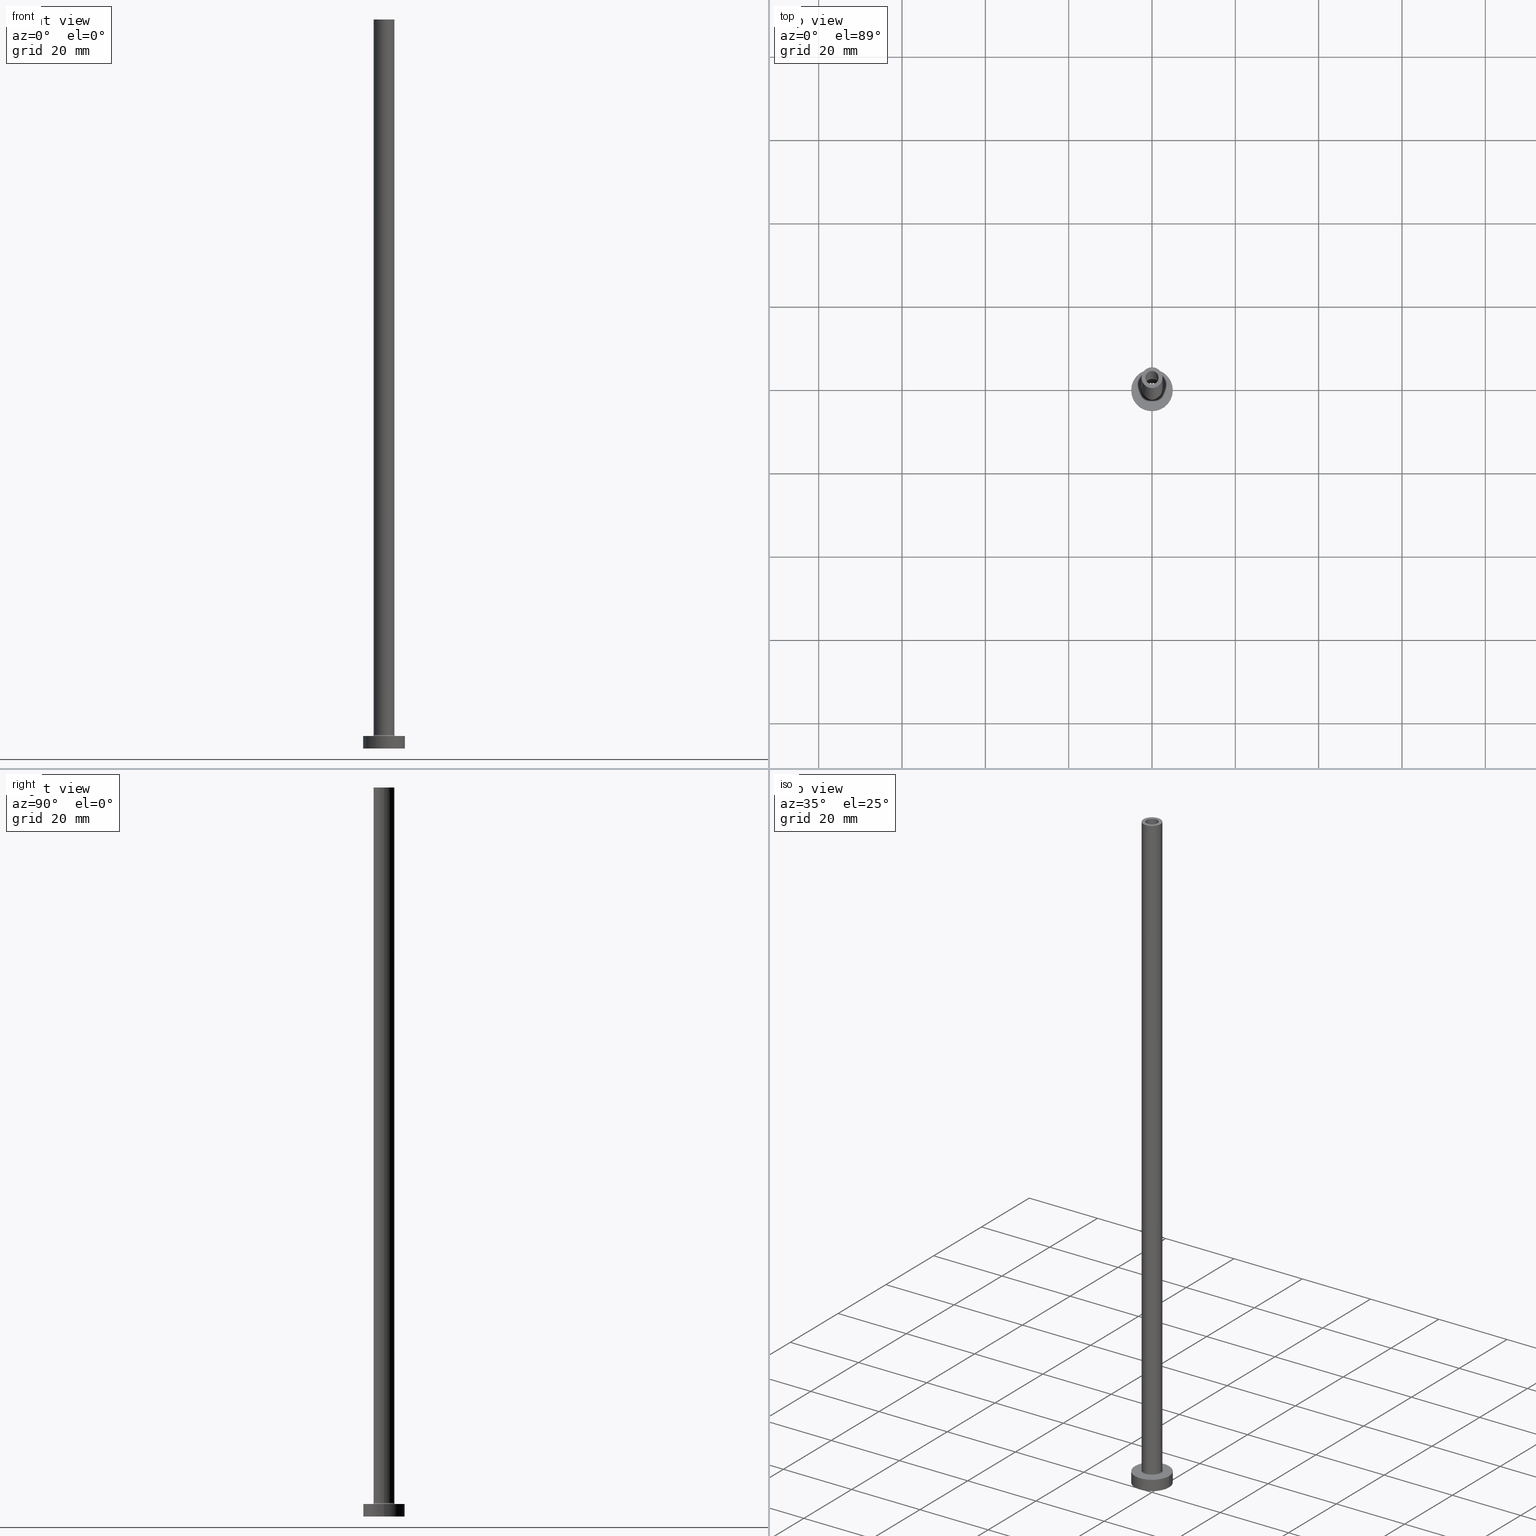
[diagram: canonical four-view strip — front | top / right | iso, engineering-drawing reading convention]
A machine part, canonical four-view strip (front | top / right | iso — engineering-drawing reading convention). The complete STEP part file that produces these views, byte-faithful:
ISO-10303-21;
HEADER;
FILE_DESCRIPTION (( 'STEP AP203' ),
    '1' );
FILE_NAME ('775a.STEP',
    '2023-02-13T12:02:19',
    ( '' ),
    ( '' ),
    'SwSTEP 2.0',
    'SolidWorks 2019',
    '' );
FILE_SCHEMA (( 'CONFIG_CONTROL_DESIGN' ));
ENDSEC;

DATA;
#1 = CARTESIAN_POINT ( 'NONE',  ( 0.000000000000000000, 0.000000000000000000, 0.000000000000000000 ) ) ;
#2 = ADVANCED_FACE ( 'NONE', ( #131 ), #355, .F. ) ;
#3 = DIRECTION ( 'NONE',  ( -0.000000000000000000, -0.000000000000000000, -1.000000000000000000 ) ) ;
#4 = AXIS2_PLACEMENT_3D ( 'NONE', #346, #78, #156 ) ;
#5 = CIRCLE ( 'NONE', #420, 5.000000000000000000 ) ;
#6 = PERSON_AND_ORGANIZATION ( #260, #377 ) ;
#7 = DIRECTION ( 'NONE',  ( -0.000000000000000000, -0.000000000000000000, -1.000000000000000000 ) ) ;
#8 = CARTESIAN_POINT ( 'NONE',  ( -5.000000000000000000, 0.000000000000000000, 3.000000000000000000 ) ) ;
#9 = CARTESIAN_POINT ( 'NONE',  ( -5.000000000000000000, 0.000000000000000000, 3.000000000000000000 ) ) ;
#10 = ORIENTED_EDGE ( 'NONE', *, *, #178, .T. ) ;
#11 = CC_DESIGN_PERSON_AND_ORGANIZATION_ASSIGNMENT ( #124, #255, ( #209 ) ) ;
#12 = CIRCLE ( 'NONE', #159, 1.750000000000000000 ) ;
#13 = CARTESIAN_POINT ( 'NONE',  ( 2.500000000000000000, 3.061616997868383141E-16, 3.299999999999997158 ) ) ;
#14 = CIRCLE ( 'NONE', #452, 1.750000000000000000 ) ;
#15 = DIRECTION ( 'NONE',  ( -0.000000000000000000, -0.000000000000000000, -1.000000000000000000 ) ) ;
#16 = DIRECTION ( 'NONE',  ( 0.000000000000000000, 0.000000000000000000, 1.000000000000000000 ) ) ;
#17 = CARTESIAN_POINT ( 'NONE',  ( 0.000000000000000000, 0.000000000000000000, 134.9497474683058442 ) ) ;
#18 = CARTESIAN_POINT ( 'NONE',  ( 0.000000000000000000, 0.000000000000000000, 3.000000000000000000 ) ) ;
#19 = AXIS2_PLACEMENT_3D ( 'NONE', #164, #292, #186 ) ;
#20 = DIRECTION ( 'NONE',  ( -1.000000000000000000, 0.000000000000000000, 0.000000000000000000 ) ) ;
#21 = AXIS2_PLACEMENT_3D ( 'NONE', #283, #115, #218 ) ;
#22 = CIRCLE ( 'NONE', #257, 5.000000000000000000 ) ;
#23 = DIRECTION ( 'NONE',  ( 1.000000000000000000, 0.000000000000000000, 0.000000000000000000 ) ) ;
#24 = ORIENTED_EDGE ( 'NONE', *, *, #199, .F. ) ;
#25 = ORIENTED_EDGE ( 'NONE', *, *, #178, .F. ) ;
#26 = EDGE_CURVE ( 'NONE', #64, #35, #228, .T. ) ;
#27 = FACE_OUTER_BOUND ( 'NONE', #203, .T. ) ;
#28 = EDGE_LOOP ( 'NONE', ( #390, #127 ) ) ;
#29 = DATE_AND_TIME ( #102, #44 ) ;
#30 = AXIS2_PLACEMENT_3D ( 'NONE', #365, #166, #20 ) ;
#31 = AXIS2_PLACEMENT_3D ( 'NONE', #264, #108, #61 ) ;
#32 = CYLINDRICAL_SURFACE ( 'NONE', #74, 2.500000000000000000 ) ;
#33 = EDGE_LOOP ( 'NONE', ( #383, #450, #417, #305 ) ) ;
#34 = FACE_BOUND ( 'NONE', #272, .T. ) ;
#35 = VERTEX_POINT ( 'NONE', #151 ) ;
#36 = AXIS2_PLACEMENT_3D ( 'NONE', #445, #284, #77 ) ;
#37 = EDGE_CURVE ( 'NONE', #428, #58, #12, .T. ) ;
#38 = LINE ( 'NONE', #279, #376 ) ;
#39 = DIRECTION ( 'NONE',  ( 0.000000000000000000, 0.000000000000000000, -1.000000000000000000 ) ) ;
#40 = EDGE_CURVE ( 'NONE', #311, #174, #154, .T. ) ;
#41 = DIRECTION ( 'NONE',  ( -1.000000000000000000, 0.000000000000000000, 0.000000000000000000 ) ) ;
#42 = CYLINDRICAL_SURFACE ( 'NONE', #85, 2.500000000000000000 ) ;
#43 = CIRCLE ( 'NONE', #421, 2.500000000000000000 ) ;
#44 = LOCAL_TIME ( 13, 2, 19.00000000000000000, #153 ) ;
#45 = ORIENTED_EDGE ( 'NONE', *, *, #165, .F. ) ;
#46 = FACE_OUTER_BOUND ( 'NONE', #387, .T. ) ;
#47 = CARTESIAN_POINT ( 'NONE',  ( 0.000000000000000000, 0.000000000000000000, 0.000000000000000000 ) ) ;
#48 = PERSON_AND_ORGANIZATION ( #260, #377 ) ;
#49 = PERSON_AND_ORGANIZATION ( #260, #377 ) ;
#50 = AXIS2_PLACEMENT_3D ( 'NONE', #269, #426, #23 ) ;
#51 = AXIS2_PLACEMENT_3D ( 'NONE', #280, #401, #76 ) ;
#52 = ORIENTED_EDGE ( 'NONE', *, *, #270, .T. ) ;
#53 = DIRECTION ( 'NONE',  ( -1.000000000000000000, 0.000000000000000000, 0.000000000000000000 ) ) ;
#54 = FACE_OUTER_BOUND ( 'NONE', #303, .T. ) ;
#55 = ORIENTED_EDGE ( 'NONE', *, *, #363, .F. ) ;
#56 = ADVANCED_FACE ( 'NONE', ( #302, #338 ), #99, .F. ) ;
#57 = EDGE_LOOP ( 'NONE', ( #444, #374, #353, #380 ) ) ;
#58 = VERTEX_POINT ( 'NONE', #144 ) ;
#59 = CARTESIAN_POINT ( 'NONE',  ( 0.000000000000000000, 0.000000000000000000, 175.0000000000000000 ) ) ;
#60 = EDGE_LOOP ( 'NONE', ( #419, #229 ) ) ;
#61 = DIRECTION ( 'NONE',  ( 1.000000000000000000, 0.000000000000000000, -0.000000000000000000 ) ) ;
#62 = APPROVAL_DATE_TIME ( #29, #301 ) ;
#63 = APPROVAL_ROLE ( '' ) ;
#64 = VERTEX_POINT ( 'NONE', #139 ) ;
#65 = CARTESIAN_POINT ( 'NONE',  ( 0.000000000000000000, 0.000000000000000000, 175.0000000000000000 ) ) ;
#66 = CALENDAR_DATE ( 2023, 13, 2 ) ;
#67 = VECTOR ( 'NONE', #285, 1000.000000000000000 ) ;
#68 = EDGE_CURVE ( 'NONE', #136, #174, #92, .T. ) ;
#69 = ORIENTED_EDGE ( 'NONE', *, *, #414, .T. ) ;
#70 = DIRECTION ( 'NONE',  ( 0.000000000000000000, 0.000000000000000000, 1.000000000000000000 ) ) ;
#71 = UNCERTAINTY_MEASURE_WITH_UNIT (LENGTH_MEASURE( 1.000000000000000082E-05 ), #82, 'distance_accuracy_value', 'NONE');
#72 = ORIENTED_EDGE ( 'NONE', *, *, #26, .T. ) ;
#73 = AXIS2_PLACEMENT_3D ( 'NONE', #1, #236, #308 ) ;
#74 = AXIS2_PLACEMENT_3D ( 'NONE', #59, #343, #175 ) ;
#75 = APPROVAL ( #382, 'NEUR�EN�' ) ;
#76 = DIRECTION ( 'NONE',  ( -1.000000000000000000, 0.000000000000000000, 0.000000000000000000 ) ) ;
#77 = DIRECTION ( 'NONE',  ( 1.000000000000000000, 0.000000000000000000, 0.000000000000000000 ) ) ;
#78 = DIRECTION ( 'NONE',  ( -0.000000000000000000, -0.000000000000000000, -1.000000000000000000 ) ) ;
#79 = CYLINDRICAL_SURFACE ( 'NONE', #150, 1.750000000000000000 ) ;
#80 = DIRECTION ( 'NONE',  ( 1.224646799147353207E-16, 1.000000000000000000, -0.000000000000000000 ) ) ;
#81 = FACE_OUTER_BOUND ( 'NONE', #413, .T. ) ;
#82 =( LENGTH_UNIT ( ) NAMED_UNIT ( * ) SI_UNIT ( .MILLI., .METRE. ) );
#83 = CARTESIAN_POINT ( 'NONE',  ( 2.799999999999999822, 0.000000000000000000, 3.299999999999997158 ) ) ;
#84 = VECTOR ( 'NONE', #103, 1000.000000000000000 ) ;
#85 = AXIS2_PLACEMENT_3D ( 'NONE', #404, #15, #400 ) ;
#86 = CC_DESIGN_SECURITY_CLASSIFICATION ( #93, ( #209 ) ) ;
#87 = COORDINATED_UNIVERSAL_TIME_OFFSET ( 1, 0, .AHEAD. ) ;
#88 = EDGE_CURVE ( 'NONE', #145, #111, #223, .T. ) ;
#89 = DATE_TIME_ROLE ( 'creation_date' ) ;
#90 = APPLICATION_CONTEXT ( 'configuration controlled 3d designs of mechanical parts and assemblies' ) ;
#91 = DATE_AND_TIME ( #410, #244 ) ;
#92 = CIRCLE ( 'NONE', #50, 1.600000000000000089 ) ;
#93 = SECURITY_CLASSIFICATION ( '', '', #117 ) ;
#94 = ORIENTED_EDGE ( 'NONE', *, *, #170, .T. ) ;
#95 = EDGE_CURVE ( 'NONE', #427, #58, #38, .T. ) ;
#96 = EDGE_LOOP ( 'NONE', ( #453, #207, #341, #69 ) ) ;
#97 = CARTESIAN_POINT ( 'NONE',  ( -1.600000000000000089, 0.000000000000000000, 175.0000000000000000 ) ) ;
#98 = CIRCLE ( 'NONE', #297, 1.600000000000000089 ) ;
#99 = PLANE ( 'NONE',  #73 ) ;
#100 = ORIENTED_EDGE ( 'NONE', *, *, #270, .F. ) ;
#101 = DIRECTION ( 'NONE',  ( 0.000000000000000000, 0.000000000000000000, 1.000000000000000000 ) ) ;
#102 = CALENDAR_DATE ( 2023, 13, 2 ) ;
#103 = DIRECTION ( 'NONE',  ( 0.000000000000000000, 0.000000000000000000, -1.000000000000000000 ) ) ;
#104 = ORIENTED_EDGE ( 'NONE', *, *, #171, .F. ) ;
#105 = EDGE_CURVE ( 'NONE', #288, #136, #439, .T. ) ;
#106 = ORIENTED_EDGE ( 'NONE', *, *, #105, .T. ) ;
#107 = CYLINDRICAL_SURFACE ( 'NONE', #322, 1.600000000000000089 ) ;
#108 = DIRECTION ( 'NONE',  ( 0.000000000000000000, 0.000000000000000000, 1.000000000000000000 ) ) ;
#109 = PERSON_AND_ORGANIZATION ( #260, #377 ) ;
#110 = EDGE_CURVE ( 'NONE', #327, #133, #114, .T. ) ;
#111 = VERTEX_POINT ( 'NONE', #441 ) ;
#112 = ADVANCED_BREP_SHAPE_REPRESENTATION ( '775a', ( #158, #163 ), #252 ) ;
#113 = CARTESIAN_POINT ( 'NONE',  ( -1.750000000000000000, 0.000000000000000000, 130.0000000000000000 ) ) ;
#114 = LINE ( 'NONE', #188, #251 ) ;
#115 = DIRECTION ( 'NONE',  ( 0.000000000000000000, 0.000000000000000000, 1.000000000000000000 ) ) ;
#116 = CARTESIAN_POINT ( 'NONE',  ( 1.600000000000000089, 1.959434878635764737E-16, 130.0000000000000000 ) ) ;
#117 = SECURITY_CLASSIFICATION_LEVEL ( 'unclassified' ) ;
#118 = ORIENTED_EDGE ( 'NONE', *, *, #95, .F. ) ;
#119 = DIRECTION ( 'NONE',  ( 0.000000000000000000, 0.000000000000000000, -1.000000000000000000 ) ) ;
#120 = FACE_OUTER_BOUND ( 'NONE', #227, .T. ) ;
#121 = CARTESIAN_POINT ( 'NONE',  ( 1.750000000000000000, 2.143131898507868297E-16, 134.9497474683058442 ) ) ;
#122 = AXIS2_PLACEMENT_3D ( 'NONE', #18, #157, #278 ) ;
#123 = APPROVAL_DATE_TIME ( #461, #75 ) ;
#124 = PERSON_AND_ORGANIZATION ( #260, #377 ) ;
#125 = ORIENTED_EDGE ( 'NONE', *, *, #277, .F. ) ;
#126 = ADVANCED_FACE ( 'NONE', ( #407, #120 ), #436, .F. ) ;
#127 = ORIENTED_EDGE ( 'NONE', *, *, #199, .T. ) ;
#128 = CIRCLE ( 'NONE', #388, 1.750000000000000000 ) ;
#129 = VERTEX_POINT ( 'NONE', #8 ) ;
#130 = CIRCLE ( 'NONE', #290, 0.2999999999999999334 ) ;
#131 = FACE_OUTER_BOUND ( 'NONE', #33, .T. ) ;
#132 = DIRECTION ( 'NONE',  ( -1.000000000000000000, 0.000000000000000000, 0.000000000000000000 ) ) ;
#133 = VERTEX_POINT ( 'NONE', #13 ) ;
#134 = FACE_OUTER_BOUND ( 'NONE', #60, .T. ) ;
#135 = CIRCLE ( 'NONE', #389, 5.000000000000000000 ) ;
#136 = VERTEX_POINT ( 'NONE', #116 ) ;
#137 = EDGE_CURVE ( 'NONE', #458, #427, #128, .T. ) ;
#138 = CARTESIAN_POINT ( 'NONE',  ( 1.600000000000000089, 1.959434878635764737E-16, 175.0000000000000000 ) ) ;
#139 = CARTESIAN_POINT ( 'NONE',  ( -2.500000000000000000, 0.000000000000000000, 175.0000000000000000 ) ) ;
#140 = ADVANCED_FACE ( 'NONE', ( #81 ), #216, .T. ) ;
#141 = FACE_BOUND ( 'NONE', #28, .T. ) ;
#142 = COORDINATED_UNIVERSAL_TIME_OFFSET ( 1, 0, .AHEAD. ) ;
#143 = PERSON_AND_ORGANIZATION_ROLE ( 'design_owner' ) ;
#144 = CARTESIAN_POINT ( 'NONE',  ( -1.750000000000000000, 0.000000000000000000, 0.000000000000000000 ) ) ;
#145 = VERTEX_POINT ( 'NONE', #336 ) ;
#146 = ORIENTED_EDGE ( 'NONE', *, *, #443, .F. ) ;
#147 = DIRECTION ( 'NONE',  ( 0.000000000000000000, 0.000000000000000000, -1.000000000000000000 ) ) ;
#148 = ADVANCED_FACE ( 'NONE', ( #54 ), #225, .F. ) ;
#149 = PERSON_AND_ORGANIZATION_ROLE ( 'classification_officer' ) ;
#150 = AXIS2_PLACEMENT_3D ( 'NONE', #17, #195, #41 ) ;
#151 = CARTESIAN_POINT ( 'NONE',  ( -2.500000000000000000, 0.000000000000000000, 3.299999999999997158 ) ) ;
#152 = APPLICATION_CONTEXT ( 'configuration controlled 3d designs of mechanical parts and assemblies' ) ;
#153 = COORDINATED_UNIVERSAL_TIME_OFFSET ( 1, 0, .AHEAD. ) ;
#154 = LINE ( 'NONE', #386, #84 ) ;
#155 = PLANE ( 'NONE',  #122 ) ;
#156 = DIRECTION ( 'NONE',  ( 1.000000000000000000, 0.000000000000000000, 0.000000000000000000 ) ) ;
#157 = DIRECTION ( 'NONE',  ( 0.000000000000000000, 0.000000000000000000, 1.000000000000000000 ) ) ;
#158 = MANIFOLD_SOLID_BREP ( 'Odebrat vysunut�m4', #321 ) ;
#159 = AXIS2_PLACEMENT_3D ( 'NONE', #393, #245, #402 ) ;
#160 = CIRCLE ( 'NONE', #36, 1.750000000000000000 ) ;
#161 = CARTESIAN_POINT ( 'NONE',  ( 0.000000000000000000, 0.000000000000000000, 175.0000000000000000 ) ) ;
#162 = CC_DESIGN_DATE_AND_TIME_ASSIGNMENT ( #253, #89, ( #232 ) ) ;
#163 = AXIS2_PLACEMENT_3D ( 'NONE', #351, #235, #431 ) ;
#164 = CARTESIAN_POINT ( 'NONE',  ( 0.000000000000000000, 0.000000000000000000, 3.000000000000000000 ) ) ;
#165 = EDGE_CURVE ( 'NONE', #288, #311, #190, .T. ) ;
#166 = DIRECTION ( 'NONE',  ( -0.000000000000000000, -0.000000000000000000, -1.000000000000000000 ) ) ;
#167 = EDGE_LOOP ( 'NONE', ( #392, #146, #72, #94 ) ) ;
#168 = AXIS2_PLACEMENT_3D ( 'NONE', #161, #364, #394 ) ;
#169 = ORIENTED_EDGE ( 'NONE', *, *, #37, .T. ) ;
#170 = EDGE_CURVE ( 'NONE', #35, #133, #43, .T. ) ;
#171 = EDGE_CURVE ( 'NONE', #415, #266, #230, .T. ) ;
#172 = ORIENTED_EDGE ( 'NONE', *, *, #243, .T. ) ;
#173 = VECTOR ( 'NONE', #254, 1000.000000000000000 ) ;
#174 = VERTEX_POINT ( 'NONE', #250 ) ;
#175 = DIRECTION ( 'NONE',  ( -1.000000000000000000, 0.000000000000000000, 0.000000000000000000 ) ) ;
#176 = DIRECTION ( 'NONE',  ( 1.000000000000000000, 0.000000000000000000, 0.000000000000000000 ) ) ;
#177 = ORIENTED_EDGE ( 'NONE', *, *, #369, .F. ) ;
#178 = EDGE_CURVE ( 'NONE', #200, #266, #399, .T. ) ;
#179 = ADVANCED_FACE ( 'NONE', ( #329 ), #325, .F. ) ;
#180 = CC_DESIGN_PERSON_AND_ORGANIZATION_ASSIGNMENT ( #222, #332, ( #209 ) ) ;
#181 = APPROVAL_ROLE ( '' ) ;
#182 = CC_DESIGN_APPROVAL ( #75, ( #232 ) ) ;
#183 = EDGE_CURVE ( 'NONE', #129, #415, #360, .T. ) ;
#184 = CARTESIAN_POINT ( 'NONE',  ( 1.750000000000000000, 2.143131898507868297E-16, 0.000000000000000000 ) ) ;
#185 = CARTESIAN_POINT ( 'NONE',  ( 0.000000000000000000, 0.000000000000000000, 130.0000000000000000 ) ) ;
#186 = DIRECTION ( 'NONE',  ( 1.000000000000000000, 0.000000000000000000, 0.000000000000000000 ) ) ;
#187 = DIRECTION ( 'NONE',  ( -1.000000000000000000, 1.224646799147353207E-16, 0.000000000000000000 ) ) ;
#188 = CARTESIAN_POINT ( 'NONE',  ( 2.500000000000000000, 3.061616997868383141E-16, 175.0000000000000000 ) ) ;
#189 = CARTESIAN_POINT ( 'NONE',  ( 0.000000000000000000, 0.000000000000000000, 175.0000000000000000 ) ) ;
#190 = CIRCLE ( 'NONE', #197, 1.600000000000000089 ) ;
#191 = APPROVAL_PERSON_ORGANIZATION ( #49, #356, #409 ) ;
#192 = DIRECTION ( 'NONE',  ( 0.000000000000000000, 0.000000000000000000, 1.000000000000000000 ) ) ;
#193 = DIRECTION ( 'NONE',  ( 1.000000000000000000, 0.000000000000000000, 0.000000000000000000 ) ) ;
#194 = DIRECTION ( 'NONE',  ( 1.000000000000000000, 0.000000000000000000, 0.000000000000000000 ) ) ;
#195 = DIRECTION ( 'NONE',  ( 0.000000000000000000, 0.000000000000000000, -1.000000000000000000 ) ) ;
#196 = CC_DESIGN_PERSON_AND_ORGANIZATION_ASSIGNMENT ( #109, #143, ( #416 ) ) ;
#197 = AXIS2_PLACEMENT_3D ( 'NONE', #335, #258, #298 ) ;
#198 = LOCAL_TIME ( 13, 2, 19.00000000000000000, #449 ) ;
#199 = EDGE_CURVE ( 'NONE', #111, #145, #219, .T. ) ;
#200 = VERTEX_POINT ( 'NONE', #318 ) ;
#201 = EDGE_CURVE ( 'NONE', #327, #64, #408, .T. ) ;
#202 = ORIENTED_EDGE ( 'NONE', *, *, #26, .F. ) ;
#203 = EDGE_LOOP ( 'NONE', ( #256, #100, #339, #24 ) ) ;
#204 = FACE_OUTER_BOUND ( 'NONE', #57, .T. ) ;
#205 = ORIENTED_EDGE ( 'NONE', *, *, #201, .F. ) ;
#206 = SHAPE_DEFINITION_REPRESENTATION ( #457, #112 ) ;
#207 = ORIENTED_EDGE ( 'NONE', *, *, #137, .T. ) ;
#208 = FACE_OUTER_BOUND ( 'NONE', #167, .T. ) ;
#209 = PRODUCT_DEFINITION_FORMATION_WITH_SPECIFIED_SOURCE ( 'LIBOVOLN�', '', #416, .NOT_KNOWN. ) ;
#210 = DIRECTION ( 'NONE',  ( 1.000000000000000000, 0.000000000000000000, 0.000000000000000000 ) ) ;
#211 = VECTOR ( 'NONE', #289, 1000.000000000000000 ) ;
#212 = CIRCLE ( 'NONE', #314, 2.500000000000000000 ) ;
#213 = DIRECTION ( 'NONE',  ( -0.000000000000000000, -0.000000000000000000, -1.000000000000000000 ) ) ;
#214 = ORIENTED_EDGE ( 'NONE', *, *, #40, .F. ) ;
#215 = DIRECTION ( 'NONE',  ( 1.000000000000000000, 0.000000000000000000, 0.000000000000000000 ) ) ;
#216 = CYLINDRICAL_SURFACE ( 'NONE', #30, 5.000000000000000000 ) ;
#217 = DIRECTION ( 'NONE',  ( 0.000000000000000000, 0.000000000000000000, 1.000000000000000000 ) ) ;
#218 = DIRECTION ( 'NONE',  ( 1.000000000000000000, 0.000000000000000000, 0.000000000000000000 ) ) ;
#219 = CIRCLE ( 'NONE', #19, 2.799999999999999822 ) ;
#220 =( NAMED_UNIT ( * ) PLANE_ANGLE_UNIT ( ) SI_UNIT ( $, .RADIAN. ) );
#221 = CARTESIAN_POINT ( 'NONE',  ( 0.000000000000000000, 0.000000000000000000, 3.000000000000000000 ) ) ;
#222 = PERSON_AND_ORGANIZATION ( #260, #377 ) ;
#223 = CIRCLE ( 'NONE', #4, 2.799999999999999822 ) ;
#224 = CC_DESIGN_APPROVAL ( #301, ( #93 ) ) ;
#225 = CYLINDRICAL_SURFACE ( 'NONE', #348, 1.600000000000000089 ) ;
#226 = EDGE_LOOP ( 'NONE', ( #233, #362 ) ) ;
#227 = EDGE_LOOP ( 'NONE', ( #55, #384 ) ) ;
#228 = LINE ( 'NONE', #437, #296 ) ;
#229 = ORIENTED_EDGE ( 'NONE', *, *, #201, .T. ) ;
#230 = CIRCLE ( 'NONE', #433, 5.000000000000000000 ) ;
#231 = CARTESIAN_POINT ( 'NONE',  ( 2.500000000000000000, 3.061616997868383141E-16, 175.0000000000000000 ) ) ;
#232 = PRODUCT_DEFINITION ( 'NEZN�M�', '', #209, #294 ) ;
#233 = ORIENTED_EDGE ( 'NONE', *, *, #414, .F. ) ;
#234 = DIRECTION ( 'NONE',  ( -1.000000000000000000, 0.000000000000000000, 0.000000000000000000 ) ) ;
#235 = DIRECTION ( 'NONE',  ( 0.000000000000000000, 0.000000000000000000, 1.000000000000000000 ) ) ;
#236 = DIRECTION ( 'NONE',  ( 0.000000000000000000, 0.000000000000000000, 1.000000000000000000 ) ) ;
#237 = ORIENTED_EDGE ( 'NONE', *, *, #243, .F. ) ;
#238 = DIRECTION ( 'NONE',  ( 1.000000000000000000, 0.000000000000000000, 0.000000000000000000 ) ) ;
#239 = ORIENTED_EDGE ( 'NONE', *, *, #378, .F. ) ;
#240 = CARTESIAN_POINT ( 'NONE',  ( 0.000000000000000000, 0.000000000000000000, 3.000000000000000000 ) ) ;
#241 = ADVANCED_FACE ( 'NONE', ( #34, #134 ), #273, .T. ) ;
#242 = LOCAL_TIME ( 13, 2, 19.00000000000000000, #142 ) ;
#243 = EDGE_CURVE ( 'NONE', #266, #415, #22, .T. ) ;
#244 = LOCAL_TIME ( 13, 2, 19.00000000000000000, #87 ) ;
#245 = DIRECTION ( 'NONE',  ( -0.000000000000000000, -0.000000000000000000, -1.000000000000000000 ) ) ;
#246 = CARTESIAN_POINT ( 'NONE',  ( -5.000000000000000000, 0.000000000000000000, 0.000000000000000000 ) ) ;
#247 = DIRECTION ( 'NONE',  ( 0.000000000000000000, 0.000000000000000000, 1.000000000000000000 ) ) ;
#248 = CARTESIAN_POINT ( 'NONE',  ( 0.000000000000000000, 0.000000000000000000, 130.0000000000000000 ) ) ;
#249 = DIRECTION ( 'NONE',  ( -0.000000000000000000, -0.000000000000000000, -1.000000000000000000 ) ) ;
#250 = CARTESIAN_POINT ( 'NONE',  ( -1.600000000000000089, 0.000000000000000000, 130.0000000000000000 ) ) ;
#251 = VECTOR ( 'NONE', #249, 1000.000000000000000 ) ;
#252 =( GEOMETRIC_REPRESENTATION_CONTEXT ( 3 ) GLOBAL_UNCERTAINTY_ASSIGNED_CONTEXT ( ( #71 ) ) GLOBAL_UNIT_ASSIGNED_CONTEXT ( ( #82, #220, #291 ) ) REPRESENTATION_CONTEXT ( 'NONE', 'WORKASPACE' ) );
#253 = DATE_AND_TIME ( #287, #198 ) ;
#254 = DIRECTION ( 'NONE',  ( 0.000000000000000000, 0.000000000000000000, -1.000000000000000000 ) ) ;
#255 = PERSON_AND_ORGANIZATION_ROLE ( 'design_supplier' ) ;
#256 = ORIENTED_EDGE ( 'NONE', *, *, #430, .F. ) ;
#257 = AXIS2_PLACEMENT_3D ( 'NONE', #434, #101, #238 ) ;
#258 = DIRECTION ( 'NONE',  ( 0.000000000000000000, 0.000000000000000000, 1.000000000000000000 ) ) ;
#259 = CARTESIAN_POINT ( 'NONE',  ( 0.000000000000000000, 0.000000000000000000, 175.0000000000000000 ) ) ;
#260 = PERSON ( 'NEUR�EN�', 'NEUR�EN�', 'NEUR�EN�', ('NEUR�EN�'), ('NEUR�EN�'), ('NEUR�EN�') ) ;
#261 = AXIS2_PLACEMENT_3D ( 'NONE', #440, #80, #187 ) ;
#262 = EDGE_LOOP ( 'NONE', ( #25, #455, #342, #403 ) ) ;
#263 = APPROVAL_PERSON_ORGANIZATION ( #6, #301, #181 ) ;
#264 = CARTESIAN_POINT ( 'NONE',  ( 0.000000000000000000, 0.000000000000000000, 175.0000000000000000 ) ) ;
#265 = CALENDAR_DATE ( 2023, 13, 2 ) ;
#266 = VERTEX_POINT ( 'NONE', #310 ) ;
#267 = ADVANCED_FACE ( 'NONE', ( #456 ), #345, .T. ) ;
#268 = ORIENTED_EDGE ( 'NONE', *, *, #378, .T. ) ;
#269 = CARTESIAN_POINT ( 'NONE',  ( 0.000000000000000000, 0.000000000000000000, 130.0000000000000000 ) ) ;
#270 = EDGE_CURVE ( 'NONE', #133, #35, #212, .T. ) ;
#271 = APPLICATION_PROTOCOL_DEFINITION ( 'international standard', 'config_control_design', 1994, #152 ) ;
#272 = EDGE_LOOP ( 'NONE', ( #239, #45 ) ) ;
#273 = PLANE ( 'NONE',  #31 ) ;
#274 = APPROVAL_STATUS ( 'not_yet_approved' ) ;
#275 = PERSON_AND_ORGANIZATION ( #260, #377 ) ;
#276 = CC_DESIGN_PERSON_AND_ORGANIZATION_ASSIGNMENT ( #48, #326, ( #232 ) ) ;
#277 = EDGE_CURVE ( 'NONE', #200, #129, #5, .T. ) ;
#278 = DIRECTION ( 'NONE',  ( 1.000000000000000000, 0.000000000000000000, -0.000000000000000000 ) ) ;
#279 = CARTESIAN_POINT ( 'NONE',  ( -1.750000000000000000, 0.000000000000000000, 134.9497474683058442 ) ) ;
#280 = CARTESIAN_POINT ( 'NONE',  ( 0.000000000000000000, 0.000000000000000000, 134.9497474683058442 ) ) ;
#281 = CARTESIAN_POINT ( 'NONE',  ( 0.000000000000000000, 0.000000000000000000, 130.0000000000000000 ) ) ;
#282 = DIRECTION ( 'NONE',  ( 1.000000000000000000, 0.000000000000000000, 0.000000000000000000 ) ) ;
#283 = CARTESIAN_POINT ( 'NONE',  ( 0.000000000000000000, 0.000000000000000000, 3.299999999999997158 ) ) ;
#284 = DIRECTION ( 'NONE',  ( 0.000000000000000000, 0.000000000000000000, 1.000000000000000000 ) ) ;
#285 = DIRECTION ( 'NONE',  ( -0.000000000000000000, -0.000000000000000000, -1.000000000000000000 ) ) ;
#286 = PRODUCT_RELATED_PRODUCT_CATEGORY ( 'detail', '', ( #416 ) ) ;
#287 = CALENDAR_DATE ( 2023, 13, 2 ) ;
#288 = VERTEX_POINT ( 'NONE', #138 ) ;
#289 = DIRECTION ( 'NONE',  ( -0.000000000000000000, -0.000000000000000000, -1.000000000000000000 ) ) ;
#290 = AXIS2_PLACEMENT_3D ( 'NONE', #83, #435, #119 ) ;
#291 =( NAMED_UNIT ( * ) SI_UNIT ( $, .STERADIAN. ) SOLID_ANGLE_UNIT ( ) );
#292 = DIRECTION ( 'NONE',  ( -0.000000000000000000, -0.000000000000000000, -1.000000000000000000 ) ) ;
#293 = APPROVAL_DATE_TIME ( #91, #356 ) ;
#294 = DESIGN_CONTEXT ( 'detailed design', #152, 'design' ) ;
#295 = ORIENTED_EDGE ( 'NONE', *, *, #454, .T. ) ;
#296 = VECTOR ( 'NONE', #7, 1000.000000000000000 ) ;
#297 = AXIS2_PLACEMENT_3D ( 'NONE', #438, #405, #315 ) ;
#298 = DIRECTION ( 'NONE',  ( 1.000000000000000000, 0.000000000000000000, 0.000000000000000000 ) ) ;
#299 = ORIENTED_EDGE ( 'NONE', *, *, #68, .T. ) ;
#300 = ORIENTED_EDGE ( 'NONE', *, *, #371, .T. ) ;
#301 = APPROVAL ( #274, 'NEUR�EN�' ) ;
#302 = FACE_BOUND ( 'NONE', #226, .T. ) ;
#303 = EDGE_LOOP ( 'NONE', ( #268, #106, #177, #214 ) ) ;
#304 = CC_DESIGN_APPROVAL ( #356, ( #209 ) ) ;
#305 = ORIENTED_EDGE ( 'NONE', *, *, #367, .F. ) ;
#306 = CARTESIAN_POINT ( 'NONE',  ( 0.000000000000000000, 0.000000000000000000, 3.299999999999997158 ) ) ;
#307 = COORDINATED_UNIVERSAL_TIME_OFFSET ( 1, 0, .AHEAD. ) ;
#308 = DIRECTION ( 'NONE',  ( 1.000000000000000000, 0.000000000000000000, -0.000000000000000000 ) ) ;
#309 = ADVANCED_FACE ( 'NONE', ( #204 ), #107, .F. ) ;
#310 = CARTESIAN_POINT ( 'NONE',  ( 5.000000000000000000, 6.123233995736766282E-16, 0.000000000000000000 ) ) ;
#311 = VERTEX_POINT ( 'NONE', #97 ) ;
#312 = ORIENTED_EDGE ( 'NONE', *, *, #277, .T. ) ;
#313 = ORIENTED_EDGE ( 'NONE', *, *, #369, .T. ) ;
#314 = AXIS2_PLACEMENT_3D ( 'NONE', #306, #460, #176 ) ;
#315 = DIRECTION ( 'NONE',  ( 1.000000000000000000, 0.000000000000000000, 0.000000000000000000 ) ) ;
#316 = DIRECTION ( 'NONE',  ( 0.000000000000000000, 0.000000000000000000, 1.000000000000000000 ) ) ;
#317 = DIRECTION ( 'NONE',  ( 0.000000000000000000, 0.000000000000000000, 1.000000000000000000 ) ) ;
#318 = CARTESIAN_POINT ( 'NONE',  ( 5.000000000000000000, 6.123233995736766282E-16, 3.000000000000000000 ) ) ;
#319 = DIRECTION ( 'NONE',  ( 1.000000000000000000, 0.000000000000000000, -0.000000000000000000 ) ) ;
#320 = DIRECTION ( 'NONE',  ( 0.000000000000000000, 0.000000000000000000, 1.000000000000000000 ) ) ;
#321 = CLOSED_SHELL ( 'NONE', ( #148, #179, #2, #446, #140, #267, #361, #56, #330, #241, #334, #451, #126, #309 ) ) ;
#322 = AXIS2_PLACEMENT_3D ( 'NONE', #65, #147, #132 ) ;
#323 = CARTESIAN_POINT ( 'NONE',  ( 1.600000000000000089, 1.959434878635764737E-16, 175.0000000000000000 ) ) ;
#324 = CC_DESIGN_DATE_AND_TIME_ASSIGNMENT ( #395, #423, ( #93 ) ) ;
#325 = CYLINDRICAL_SURFACE ( 'NONE', #51, 1.750000000000000000 ) ;
#326 = PERSON_AND_ORGANIZATION_ROLE ( 'creator' ) ;
#327 = VERTEX_POINT ( 'NONE', #231 ) ;
#328 = LINE ( 'NONE', #121, #173 ) ;
#329 = FACE_OUTER_BOUND ( 'NONE', #344, .T. ) ;
#330 = ADVANCED_FACE ( 'NONE', ( #208 ), #32, .T. ) ;
#331 = VECTOR ( 'NONE', #39, 1000.000000000000000 ) ;
#332 = PERSON_AND_ORGANIZATION_ROLE ( 'creator' ) ;
#333 = AXIS2_PLACEMENT_3D ( 'NONE', #240, #3, #234 ) ;
#334 = ADVANCED_FACE ( 'NONE', ( #27 ), #459, .F. ) ;
#335 = CARTESIAN_POINT ( 'NONE',  ( 0.000000000000000000, 0.000000000000000000, 175.0000000000000000 ) ) ;
#336 = CARTESIAN_POINT ( 'NONE',  ( 2.799999999999999822, 0.000000000000000000, 2.999999999999998668 ) ) ;
#337 = ORIENTED_EDGE ( 'NONE', *, *, #110, .T. ) ;
#338 = FACE_OUTER_BOUND ( 'NONE', #422, .T. ) ;
#339 = ORIENTED_EDGE ( 'NONE', *, *, #367, .T. ) ;
#340 = CIRCLE ( 'NONE', #261, 0.2999999999999999334 ) ;
#341 = ORIENTED_EDGE ( 'NONE', *, *, #95, .T. ) ;
#342 = ORIENTED_EDGE ( 'NONE', *, *, #183, .T. ) ;
#343 = DIRECTION ( 'NONE',  ( -0.000000000000000000, -0.000000000000000000, -1.000000000000000000 ) ) ;
#344 = EDGE_LOOP ( 'NONE', ( #379, #295, #169, #118 ) ) ;
#345 = CYLINDRICAL_SURFACE ( 'NONE', #333, 5.000000000000000000 ) ;
#346 = CARTESIAN_POINT ( 'NONE',  ( 0.000000000000000000, 0.000000000000000000, 3.000000000000000000 ) ) ;
#347 = PERSON_AND_ORGANIZATION ( #260, #377 ) ;
#348 = AXIS2_PLACEMENT_3D ( 'NONE', #259, #373, #53 ) ;
#349 = LOCAL_TIME ( 13, 2, 19.00000000000000000, #307 ) ;
#350 = ORIENTED_EDGE ( 'NONE', *, *, #183, .F. ) ;
#351 = CARTESIAN_POINT ( 'NONE',  ( 0.000000000000000000, 0.000000000000000000, 0.000000000000000000 ) ) ;
#352 = FACE_OUTER_BOUND ( 'NONE', #432, .T. ) ;
#353 = ORIENTED_EDGE ( 'NONE', *, *, #40, .T. ) ;
#354 = DIRECTION ( 'NONE',  ( 0.000000000000000000, 0.000000000000000000, -1.000000000000000000 ) ) ;
#355 = TOROIDAL_SURFACE ( 'NONE', #21, 2.799999999999999822, 0.2999999999999999889 ) ;
#356 = APPROVAL ( #411, 'NEUR�EN�' ) ;
#357 = DIRECTION ( 'NONE',  ( 1.000000000000000000, 0.000000000000000000, 0.000000000000000000 ) ) ;
#358 = FACE_OUTER_BOUND ( 'NONE', #96, .T. ) ;
#359 = DIRECTION ( 'NONE',  ( 1.000000000000000000, 0.000000000000000000, 0.000000000000000000 ) ) ;
#360 = LINE ( 'NONE', #9, #211 ) ;
#361 = ADVANCED_FACE ( 'NONE', ( #141, #352 ), #155, .T. ) ;
#362 = ORIENTED_EDGE ( 'NONE', *, *, #37, .F. ) ;
#363 = EDGE_CURVE ( 'NONE', #427, #458, #160, .T. ) ;
#364 = DIRECTION ( 'NONE',  ( 0.000000000000000000, 0.000000000000000000, 1.000000000000000000 ) ) ;
#365 = CARTESIAN_POINT ( 'NONE',  ( 0.000000000000000000, 0.000000000000000000, 3.000000000000000000 ) ) ;
#366 = AXIS2_PLACEMENT_3D ( 'NONE', #248, #316, #215 ) ;
#367 = EDGE_CURVE ( 'NONE', #133, #145, #130, .T. ) ;
#368 = CARTESIAN_POINT ( 'NONE',  ( 0.000000000000000000, 0.000000000000000000, 3.299999999999997158 ) ) ;
#369 = EDGE_CURVE ( 'NONE', #174, #136, #372, .T. ) ;
#370 = CARTESIAN_POINT ( 'NONE',  ( 5.000000000000000000, 6.123233995736766282E-16, 3.000000000000000000 ) ) ;
#371 = EDGE_CURVE ( 'NONE', #129, #200, #135, .T. ) ;
#372 = CIRCLE ( 'NONE', #366, 1.600000000000000089 ) ;
#373 = DIRECTION ( 'NONE',  ( 0.000000000000000000, 0.000000000000000000, -1.000000000000000000 ) ) ;
#374 = ORIENTED_EDGE ( 'NONE', *, *, #165, .T. ) ;
#375 = CC_DESIGN_PERSON_AND_ORGANIZATION_ASSIGNMENT ( #275, #149, ( #93 ) ) ;
#376 = VECTOR ( 'NONE', #354, 1000.000000000000000 ) ;
#377 = ORGANIZATION ( 'NEUR�EN�', 'NEUR�EN�', '' ) ;
#378 = EDGE_CURVE ( 'NONE', #311, #288, #98, .T. ) ;
#379 = ORIENTED_EDGE ( 'NONE', *, *, #363, .T. ) ;
#380 = ORIENTED_EDGE ( 'NONE', *, *, #68, .F. ) ;
#381 = DIRECTION ( 'NONE',  ( 0.000000000000000000, 0.000000000000000000, 1.000000000000000000 ) ) ;
#382 = APPROVAL_STATUS ( 'not_yet_approved' ) ;
#383 = ORIENTED_EDGE ( 'NONE', *, *, #170, .F. ) ;
#384 = ORIENTED_EDGE ( 'NONE', *, *, #137, .F. ) ;
#385 = MECHANICAL_CONTEXT ( 'NONE', #90, 'mechanical' ) ;
#386 = CARTESIAN_POINT ( 'NONE',  ( -1.600000000000000089, 0.000000000000000000, 175.0000000000000000 ) ) ;
#387 = EDGE_LOOP ( 'NONE', ( #205, #337, #52, #202 ) ) ;
#388 = AXIS2_PLACEMENT_3D ( 'NONE', #281, #247, #406 ) ;
#389 = AXIS2_PLACEMENT_3D ( 'NONE', #221, #192, #359 ) ;
#390 = ORIENTED_EDGE ( 'NONE', *, *, #88, .T. ) ;
#391 = DIRECTION ( 'NONE',  ( 1.000000000000000000, 0.000000000000000000, 0.000000000000000000 ) ) ;
#392 = ORIENTED_EDGE ( 'NONE', *, *, #110, .F. ) ;
#393 = CARTESIAN_POINT ( 'NONE',  ( 0.000000000000000000, 0.000000000000000000, 0.000000000000000000 ) ) ;
#394 = DIRECTION ( 'NONE',  ( 1.000000000000000000, 0.000000000000000000, 0.000000000000000000 ) ) ;
#395 = DATE_AND_TIME ( #265, #242 ) ;
#396 = CARTESIAN_POINT ( 'NONE',  ( 0.000000000000000000, 0.000000000000000000, 0.000000000000000000 ) ) ;
#397 = AXIS2_PLACEMENT_3D ( 'NONE', #185, #317, #319 ) ;
#398 = APPROVAL_PERSON_ORGANIZATION ( #347, #75, #63 ) ;
#399 = LINE ( 'NONE', #370, #67 ) ;
#400 = DIRECTION ( 'NONE',  ( -1.000000000000000000, 0.000000000000000000, 0.000000000000000000 ) ) ;
#401 = DIRECTION ( 'NONE',  ( 0.000000000000000000, 0.000000000000000000, -1.000000000000000000 ) ) ;
#402 = DIRECTION ( 'NONE',  ( 1.000000000000000000, 0.000000000000000000, 0.000000000000000000 ) ) ;
#403 = ORIENTED_EDGE ( 'NONE', *, *, #171, .T. ) ;
#404 = CARTESIAN_POINT ( 'NONE',  ( 0.000000000000000000, 0.000000000000000000, 175.0000000000000000 ) ) ;
#405 = DIRECTION ( 'NONE',  ( 0.000000000000000000, 0.000000000000000000, 1.000000000000000000 ) ) ;
#406 = DIRECTION ( 'NONE',  ( 1.000000000000000000, 0.000000000000000000, 0.000000000000000000 ) ) ;
#407 = FACE_BOUND ( 'NONE', #424, .T. ) ;
#408 = CIRCLE ( 'NONE', #442, 2.500000000000000000 ) ;
#409 = APPROVAL_ROLE ( '' ) ;
#410 = CALENDAR_DATE ( 2023, 13, 2 ) ;
#411 = APPROVAL_STATUS ( 'not_yet_approved' ) ;
#412 = CIRCLE ( 'NONE', #168, 2.500000000000000000 ) ;
#413 = EDGE_LOOP ( 'NONE', ( #125, #10, #172, #350 ) ) ;
#414 = EDGE_CURVE ( 'NONE', #58, #428, #14, .T. ) ;
#415 = VERTEX_POINT ( 'NONE', #246 ) ;
#416 = PRODUCT ( '775a', '775a', '', ( #385 ) ) ;
#417 = ORIENTED_EDGE ( 'NONE', *, *, #88, .F. ) ;
#418 = CARTESIAN_POINT ( 'NONE',  ( 0.000000000000000000, 0.000000000000000000, 3.000000000000000000 ) ) ;
#419 = ORIENTED_EDGE ( 'NONE', *, *, #443, .T. ) ;
#420 = AXIS2_PLACEMENT_3D ( 'NONE', #418, #381, #391 ) ;
#421 = AXIS2_PLACEMENT_3D ( 'NONE', #368, #217, #193 ) ;
#422 = EDGE_LOOP ( 'NONE', ( #104, #237 ) ) ;
#423 = DATE_TIME_ROLE ( 'classification_date' ) ;
#424 = EDGE_LOOP ( 'NONE', ( #313, #299 ) ) ;
#425 = APPLICATION_PROTOCOL_DEFINITION ( 'international standard', 'config_control_design', 1994, #90 ) ;
#426 = DIRECTION ( 'NONE',  ( 0.000000000000000000, 0.000000000000000000, 1.000000000000000000 ) ) ;
#427 = VERTEX_POINT ( 'NONE', #113 ) ;
#428 = VERTEX_POINT ( 'NONE', #184 ) ;
#429 = CARTESIAN_POINT ( 'NONE',  ( 0.000000000000000000, 0.000000000000000000, 3.299999999999997158 ) ) ;
#430 = EDGE_CURVE ( 'NONE', #35, #111, #340, .T. ) ;
#431 = DIRECTION ( 'NONE',  ( 1.000000000000000000, 0.000000000000000000, 0.000000000000000000 ) ) ;
#432 = EDGE_LOOP ( 'NONE', ( #300, #312 ) ) ;
#433 = AXIS2_PLACEMENT_3D ( 'NONE', #47, #16, #194 ) ;
#434 = CARTESIAN_POINT ( 'NONE',  ( 0.000000000000000000, 0.000000000000000000, 0.000000000000000000 ) ) ;
#435 = DIRECTION ( 'NONE',  ( 0.000000000000000000, -1.000000000000000000, 0.000000000000000000 ) ) ;
#436 = PLANE ( 'NONE',  #397 ) ;
#437 = CARTESIAN_POINT ( 'NONE',  ( -2.500000000000000000, 0.000000000000000000, 175.0000000000000000 ) ) ;
#438 = CARTESIAN_POINT ( 'NONE',  ( 0.000000000000000000, 0.000000000000000000, 175.0000000000000000 ) ) ;
#439 = LINE ( 'NONE', #323, #331 ) ;
#440 = CARTESIAN_POINT ( 'NONE',  ( -2.799999999999999822, 3.429011037612588783E-16, 3.299999999999997158 ) ) ;
#441 = CARTESIAN_POINT ( 'NONE',  ( -2.799999999999999822, 3.429011037612589276E-16, 2.999999999999998668 ) ) ;
#442 = AXIS2_PLACEMENT_3D ( 'NONE', #189, #320, #282 ) ;
#443 = EDGE_CURVE ( 'NONE', #64, #327, #412, .T. ) ;
#444 = ORIENTED_EDGE ( 'NONE', *, *, #105, .F. ) ;
#445 = CARTESIAN_POINT ( 'NONE',  ( 0.000000000000000000, 0.000000000000000000, 130.0000000000000000 ) ) ;
#446 = ADVANCED_FACE ( 'NONE', ( #46 ), #42, .T. ) ;
#447 = CARTESIAN_POINT ( 'NONE',  ( 1.750000000000000000, 2.143131898507868297E-16, 130.0000000000000000 ) ) ;
#448 = AXIS2_PLACEMENT_3D ( 'NONE', #429, #70, #210 ) ;
#449 = COORDINATED_UNIVERSAL_TIME_OFFSET ( 1, 0, .AHEAD. ) ;
#450 = ORIENTED_EDGE ( 'NONE', *, *, #430, .T. ) ;
#451 = ADVANCED_FACE ( 'NONE', ( #358 ), #79, .F. ) ;
#452 = AXIS2_PLACEMENT_3D ( 'NONE', #396, #213, #357 ) ;
#453 = ORIENTED_EDGE ( 'NONE', *, *, #454, .F. ) ;
#454 = EDGE_CURVE ( 'NONE', #458, #428, #328, .T. ) ;
#455 = ORIENTED_EDGE ( 'NONE', *, *, #371, .F. ) ;
#456 = FACE_OUTER_BOUND ( 'NONE', #262, .T. ) ;
#457 = PRODUCT_DEFINITION_SHAPE ( 'NONE', 'NONE',  #232 ) ;
#458 = VERTEX_POINT ( 'NONE', #447 ) ;
#459 = TOROIDAL_SURFACE ( 'NONE', #448, 2.799999999999999822, 0.2999999999999999889 ) ;
#460 = DIRECTION ( 'NONE',  ( 0.000000000000000000, 0.000000000000000000, 1.000000000000000000 ) ) ;
#461 = DATE_AND_TIME ( #66, #349 ) ;
ENDSEC;
END-ISO-10303-21;
